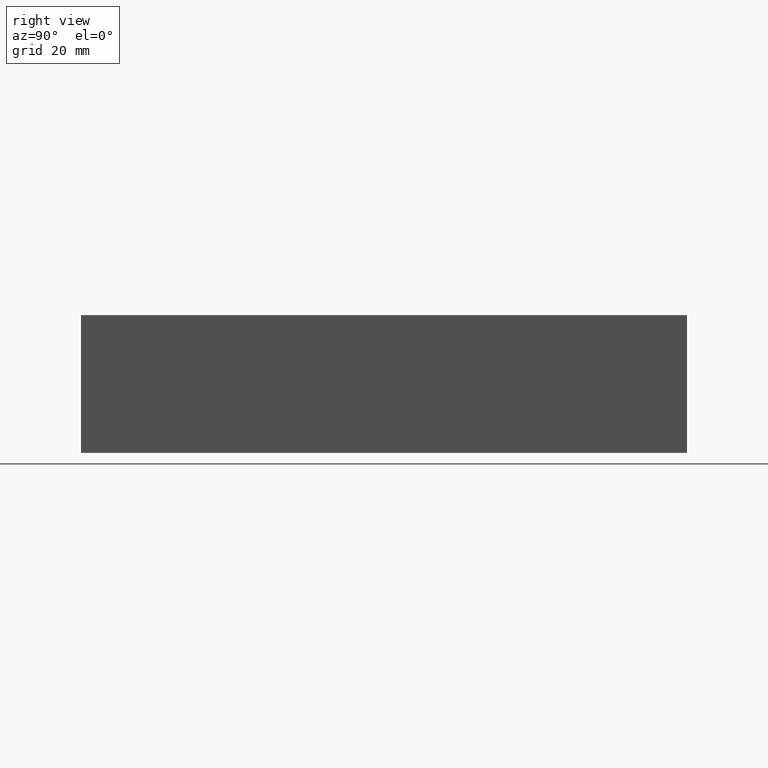
[diagram: clean part render]
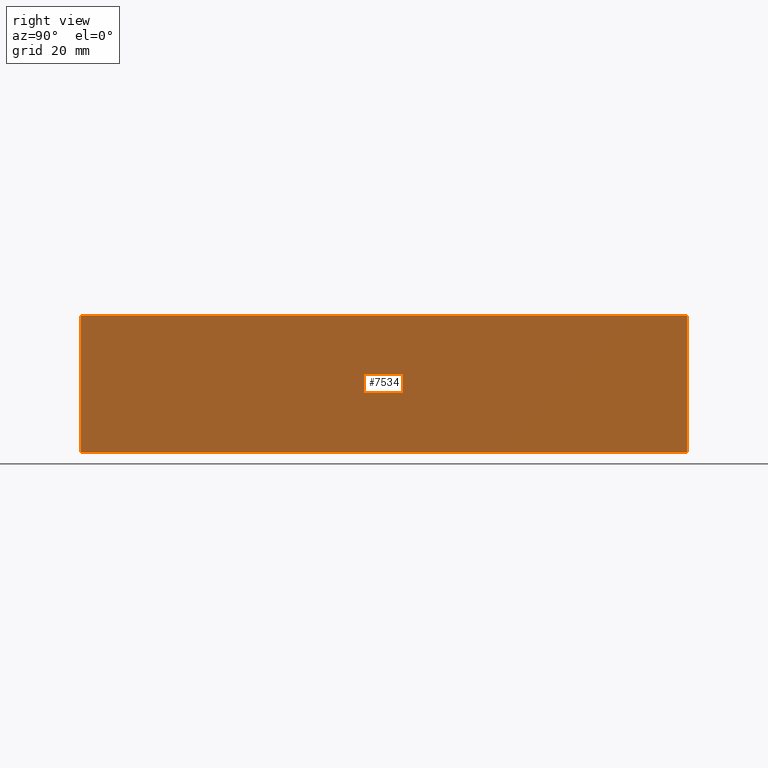
[diagram: same view with one face highlighted and labeled with its STEP entity id]
A machine part, right view. The second image highlights one B-rep face of the part: STEP entity #7534.
In plain terms, the highlighted planar face has unit normal (1, 0, 0).
Its self-contained STEP definition (entity closure, byte-faithful):
#860=FACE_OUTER_BOUND('',#1313,.T.);
#1313=EDGE_LOOP('',(#6546,#6547,#6548,#6549));
#1709=LINE('',#10410,#2476);
#2058=LINE('',#12482,#2825);
#2096=LINE('',#12679,#2863);
#2097=LINE('',#12681,#2864);
#2476=VECTOR('',#8594,10.);
#2825=VECTOR('',#9263,10.);
#2863=VECTOR('',#9497,10.);
#2864=VECTOR('',#9500,10.);
#3128=VERTEX_POINT('',#10407);
#3129=VERTEX_POINT('',#10409);
#3482=VERTEX_POINT('',#12480);
#3543=VERTEX_POINT('',#12677);
#3938=EDGE_CURVE('',#3128,#3129,#1709,.T.);
#4463=EDGE_CURVE('',#3128,#3482,#2058,.T.);
#4553=EDGE_CURVE('',#3482,#3543,#2096,.T.);
#4554=EDGE_CURVE('',#3129,#3543,#2097,.T.);
#6546=ORIENTED_EDGE('',*,*,#4463,.T.);
#6547=ORIENTED_EDGE('',*,*,#4553,.T.);
#6548=ORIENTED_EDGE('',*,*,#4554,.F.);
#6549=ORIENTED_EDGE('',*,*,#3938,.F.);
#6832=PLANE('',#7945);
#7534=ADVANCED_FACE('',(#860),#6832,.T.);
#7945=AXIS2_PLACEMENT_3D('',#12680,#9498,#9499);
#8594=DIRECTION('',(0.,0.,1.));
#9263=DIRECTION('',(0.,1.,0.));
#9497=DIRECTION('',(0.,0.,1.));
#9498=DIRECTION('center_axis',(1.,0.,0.));
#9499=DIRECTION('ref_axis',(0.,1.,0.));
#9500=DIRECTION('',(0.,1.,0.));
#10407=CARTESIAN_POINT('',(88.9,0.,0.));
#10409=CARTESIAN_POINT('',(88.9,0.,31.75));
#10410=CARTESIAN_POINT('',(88.9,0.,0.));
#12480=CARTESIAN_POINT('',(88.9,139.7,0.));
#12482=CARTESIAN_POINT('',(88.9,0.,0.));
#12677=CARTESIAN_POINT('',(88.9,139.7,31.75));
#12679=CARTESIAN_POINT('',(88.9,139.7,0.));
#12680=CARTESIAN_POINT('Origin',(88.9,0.,0.));
#12681=CARTESIAN_POINT('',(88.9,0.,31.75));